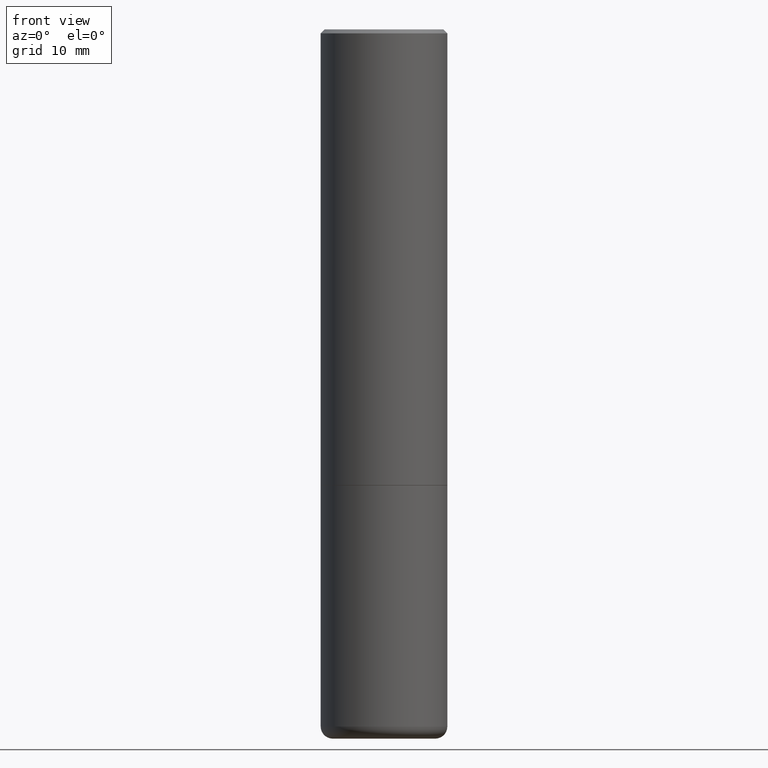
[diagram: clean part render]
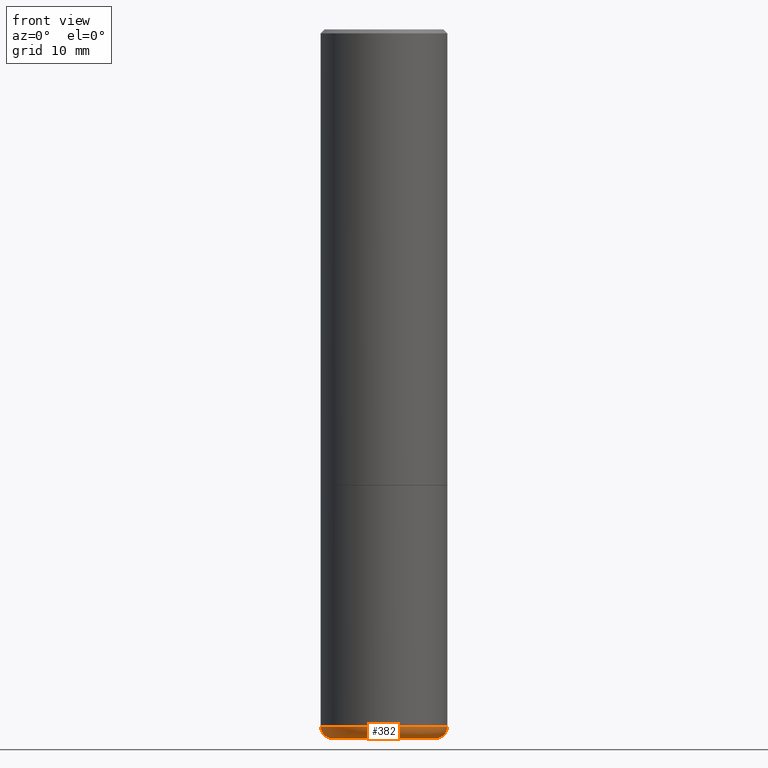
[diagram: same view with one face highlighted and labeled with its STEP entity id]
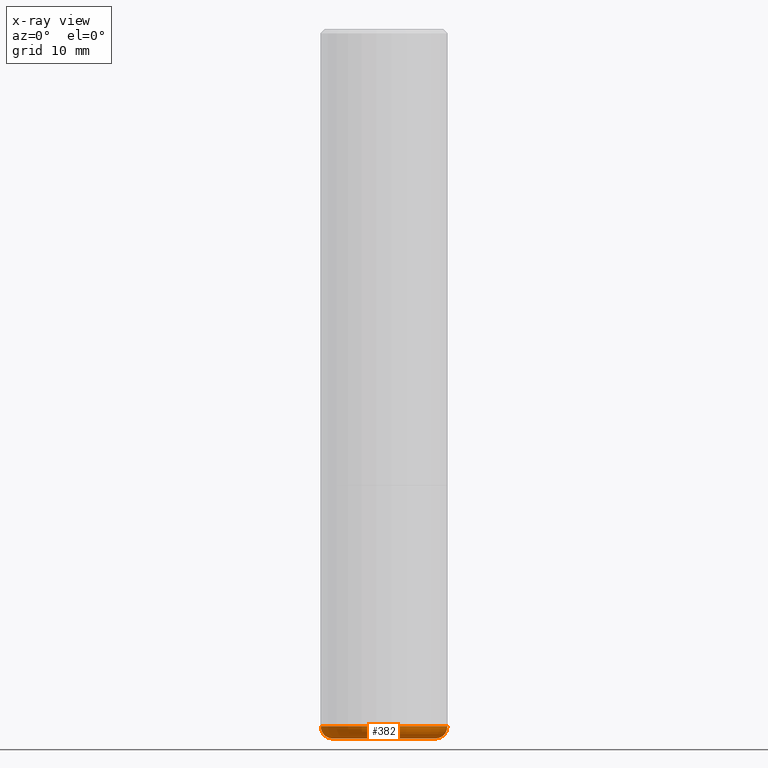
[diagram: x-ray of the same camera — body ghosted, the highlighted face saturated]
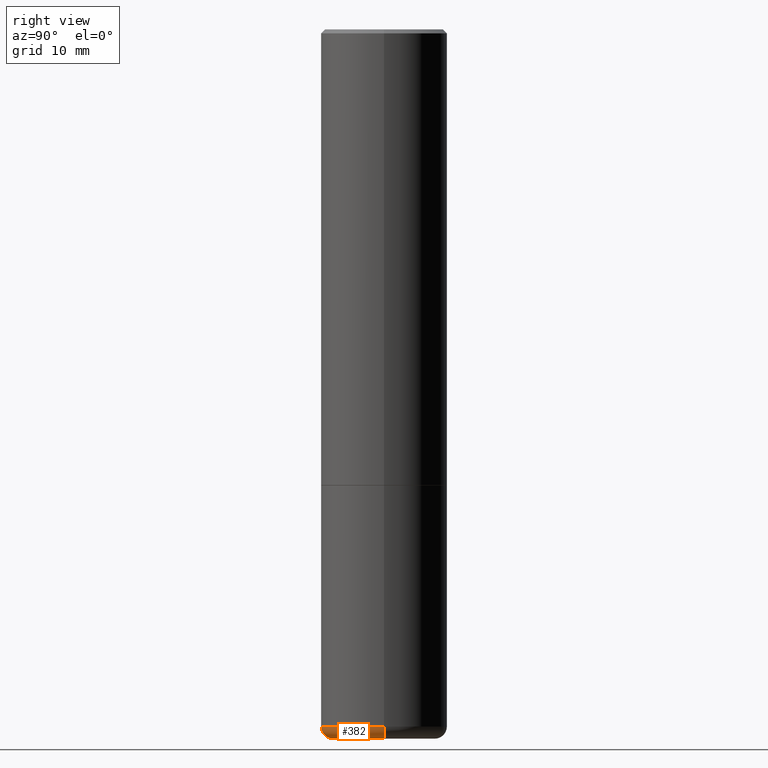
[diagram: same view with one face highlighted and labeled with its STEP entity id]
A machine part, front view. The second image highlights one B-rep face of the part: STEP entity #382.
The next image is the same camera in x-ray: the body ghosted, the highlighted face saturated — about 0% of this face is hidden behind the body in this view.
A second angle (right view) of the same face is appended — the face is thin or edge-on in the first view.
In plain terms, the highlighted toroidal blend (fillet) surface has major radius 6.4135 mm and minor (blend) radius 1.524 mm.
Its self-contained STEP definition (entity closure, byte-faithful):
#4 = EDGE_CURVE ( 'NONE', #410, #179, #313, .T. ) ;
#8 = DIRECTION ( 'NONE',  ( -2.445468806185136597E-29, 3.491481338843145583E-15, 1.000000000000000000 ) ) ;
#28 = EDGE_LOOP ( 'NONE', ( #328, #187, #350, #151 ) ) ;
#56 = DIRECTION ( 'NONE',  ( 1.000000000000000000, -6.982962677686269866E-15, 0.000000000000000000 ) ) ;
#70 = DIRECTION ( 'NONE',  ( -2.445468806185136597E-29, 3.491481338843145583E-15, 1.000000000000000000 ) ) ;
#80 = AXIS2_PLACEMENT_3D ( 'NONE', #214, #8, #56 ) ;
#81 = AXIS2_PLACEMENT_3D ( 'NONE', #98, #124, #190 ) ;
#98 = CARTESIAN_POINT ( 'NONE',  ( 0.2525000000000000022, -1.377389388173620432E-14, -3.439999999999999947 ) ) ;
#114 = VERTEX_POINT ( 'NONE', #271 ) ;
#124 = DIRECTION ( 'NONE',  ( -6.982962677686266711E-15, -1.000000000000000000, 3.491481338843145583E-15 ) ) ;
#140 = AXIS2_PLACEMENT_3D ( 'NONE', #164, #70, #398 ) ;
#149 = AXIS2_PLACEMENT_3D ( 'NONE', #404, #306, #371 ) ;
#150 = VERTEX_POINT ( 'NONE', #198 ) ;
#151 = ORIENTED_EDGE ( 'NONE', *, *, #249, .F. ) ;
#164 = CARTESIAN_POINT ( 'NONE',  ( 8.412412693276869938E-29, -1.201069580562042103E-14, -3.439999999999999947 ) ) ;
#168 = AXIS2_PLACEMENT_3D ( 'NONE', #374, #171, #376 ) ;
#171 = DIRECTION ( 'NONE',  ( -2.445468806185136597E-29, 3.491481338843145583E-15, 1.000000000000000000 ) ) ;
#179 = VERTEX_POINT ( 'NONE', #302 ) ;
#187 = ORIENTED_EDGE ( 'NONE', *, *, #4, .T. ) ;
#190 = DIRECTION ( 'NONE',  ( 1.000000000000000000, -6.982962677686274599E-15, 0.000000000000000000 ) ) ;
#198 = CARTESIAN_POINT ( 'NONE',  ( 0.3125000000000000000, -1.419287164239737937E-14, -3.439999999999999947 ) ) ;
#214 = CARTESIAN_POINT ( 'NONE',  ( 8.559140821647976968E-29, -1.222018468595100934E-14, -3.500000000000000000 ) ) ;
#217 = CIRCLE ( 'NONE', #149, 0.05999999999999994227 ) ;
#242 = FACE_OUTER_BOUND ( 'NONE', #28, .T. ) ;
#249 = EDGE_CURVE ( 'NONE', #114, #150, #403, .T. ) ;
#271 = CARTESIAN_POINT ( 'NONE',  ( -0.3125000000000000000, -9.790249756370107944E-15, -3.439999999999999947 ) ) ;
#272 = CARTESIAN_POINT ( 'NONE',  ( -0.2525000000000000022, -1.010815701726343156E-14, -3.500000000000000000 ) ) ;
#282 = EDGE_CURVE ( 'NONE', #179, #150, #393, .T. ) ;
#302 = CARTESIAN_POINT ( 'NONE',  ( 0.2525000000000000022, -1.398338276206679106E-14, -3.500000000000000000 ) ) ;
#306 = DIRECTION ( 'NONE',  ( 7.105427357601001859E-15, 1.000000000000000000, -3.491481338843145583E-15 ) ) ;
#308 = TOROIDAL_SURFACE ( 'NONE', #168, 0.2525000000000000022, 0.05999999999999995615 ) ;
#313 = CIRCLE ( 'NONE', #80, 0.2525000000000000022 ) ;
#328 = ORIENTED_EDGE ( 'NONE', *, *, #409, .F. ) ;
#350 = ORIENTED_EDGE ( 'NONE', *, *, #282, .T. ) ;
#371 = DIRECTION ( 'NONE',  ( -1.000000000000000000, 7.105427357600997914E-15, 0.000000000000000000 ) ) ;
#374 = CARTESIAN_POINT ( 'NONE',  ( 8.412412693276869938E-29, -1.201069580562042103E-14, -3.439999999999999947 ) ) ;
#376 = DIRECTION ( 'NONE',  ( 1.000000000000000000, -6.982962677686264344E-15, 4.883557194083112340E-29 ) ) ;
#382 = ADVANCED_FACE ( 'NONE', ( #242 ), #308, .T. ) ;
#393 = CIRCLE ( 'NONE', #81, 0.05999999999999994227 ) ;
#398 = DIRECTION ( 'NONE',  ( 1.000000000000000000, -6.982962677686269077E-15, 0.000000000000000000 ) ) ;
#403 = CIRCLE ( 'NONE', #140, 0.3125000000000000000 ) ;
#404 = CARTESIAN_POINT ( 'NONE',  ( -0.2525000000000000022, -1.021657539782616686E-14, -3.439999999999999947 ) ) ;
#409 = EDGE_CURVE ( 'NONE', #410, #114, #217, .T. ) ;
#410 = VERTEX_POINT ( 'NONE', #272 ) ;